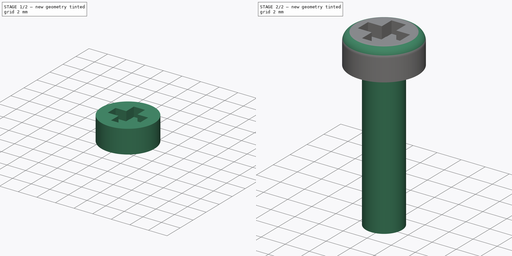
[diagram: build sequence overview — one tinted view per stage of 2, left to right]
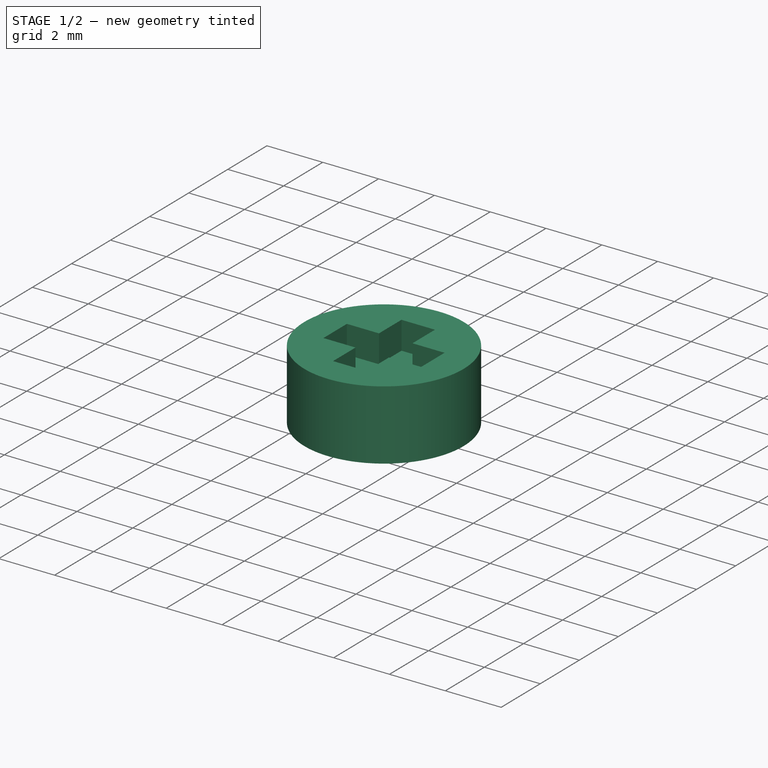
[diagram: stage 1 of 2 — iso view after this stage's code; geometry added in this stage tinted green]
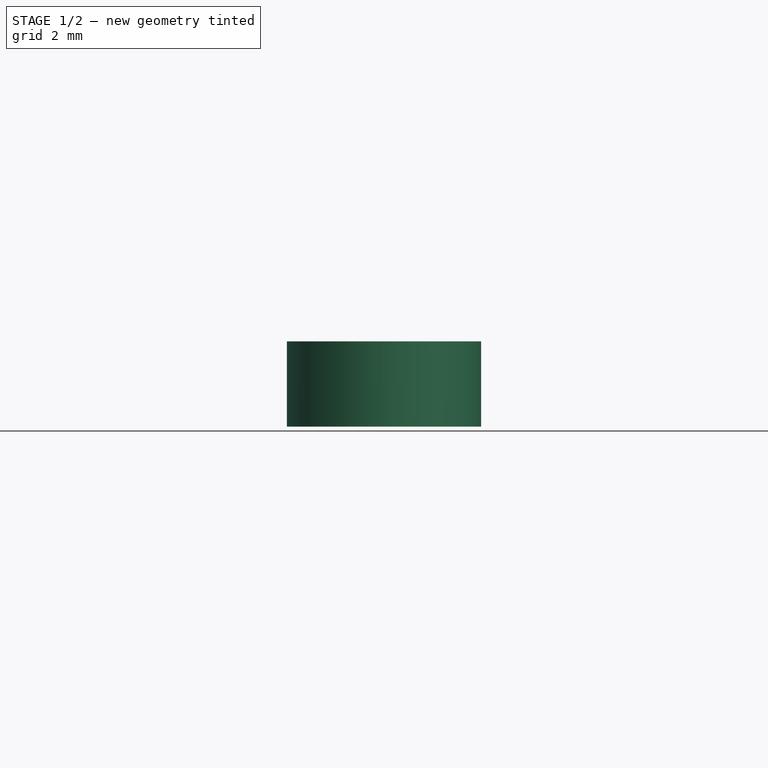
[diagram: stage 1 of 2 — front view after this stage's code; geometry added in this stage tinted green]
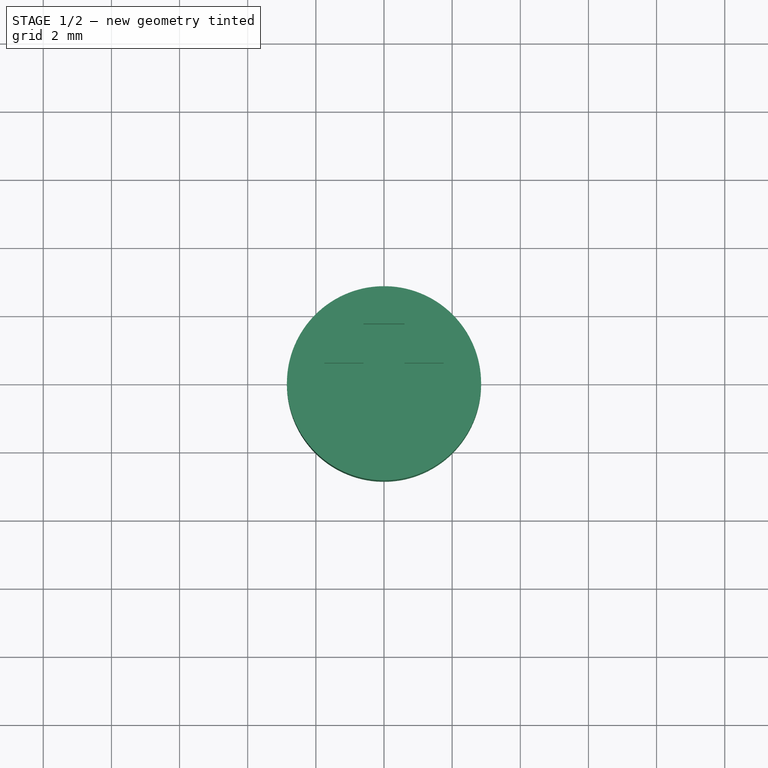
[diagram: stage 1 of 2 — top view after this stage's code; geometry added in this stage tinted green]
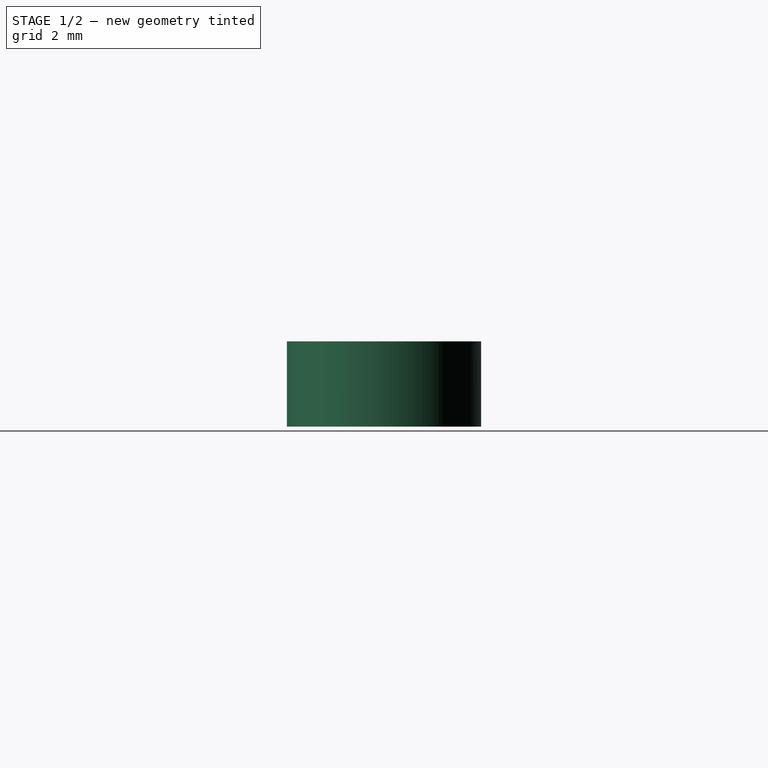
[diagram: stage 1 of 2 — right view after this stage's code; geometry added in this stage tinted green]
FCSTD DOCUMENT  (FreeCAD 0.21R33668 +26 (Git))
Label: Screw_12
License: All rights reserved
LicenseURL: https://en.wikipedia.org/wiki/All_rights_reserved
objects: Sketcher::SketchObject×3, PartDesign::Pad×2, PartDesign::Pocket×1, PartDesign::Fillet×1, PartDesign::Body×1
note: 12 computed .brp shape members not serialized (recipe doc carries the construction recipe); baked Part::Feature solids carry a one-line shape summary decoded from their .brp

FEATURE [Sketcher::SketchObject] Sketch
  FullyConstrained = true
  MapMode = 5
  Support = -> [XY_Plane]
  sketch-geometry (1):
    g0: Circle CenterX=0 CenterY=0 CenterZ=0 NormalX=0 NormalY=0 NormalZ=1 AngleXU=0 Radius=2.85
  constraints (2):
    c: Coincident(g0,g-1)
    c: Diameter(g0) = 5.7
FEATURE [PartDesign::Pad] Pad
  Direction = (0,0,1)
  Length = 2.5
  Length2 = 10
  Profile = -> Sketch
  ReferenceAxis = -> Sketch [N_Axis]
  Type = 0
FEATURE [Sketcher::SketchObject] Sketch001
  FullyConstrained = true
  MapMode = 5
  Placement = pos=(0,0,2.5) rot=(0,0,1;0rad)
  Support = -> [Pad]
  sketch-geometry (12):
    g0: LineSegment StartX=-0.6 StartY=1.75 StartZ=0 EndX=0.6 EndY=1.75 EndZ=0
    g1: LineSegment StartX=0.6 StartY=-1.75 StartZ=0 EndX=-0.6 EndY=-1.75 EndZ=0
    g2: LineSegment StartX=1.75 StartY=0.6 StartZ=0 EndX=1.75 EndY=-0.6 EndZ=0
    g3: LineSegment StartX=-1.75 StartY=-0.6 StartZ=0 EndX=-1.75 EndY=0.6 EndZ=0
    g4: LineSegment StartX=-0.6 StartY=1.75 StartZ=0 EndX=-0.6 EndY=0.6 EndZ=0
    g5: LineSegment StartX=-0.6 StartY=0.6 StartZ=0 EndX=-1.75 EndY=0.6 EndZ=0
    g6: LineSegment StartX=-1.75 StartY=-0.6 StartZ=0 EndX=-0.6 EndY=-0.6 EndZ=0
    g7: LineSegment StartX=-0.6 StartY=-0.6 StartZ=0 EndX=-0.6 EndY=-1.75 EndZ=0
    g8: LineSegment StartX=0.6 StartY=-1.75 StartZ=0 EndX=0.6 EndY=-0.6 EndZ=0
    g9: LineSegment StartX=0.6 StartY=-0.6 StartZ=0 EndX=1.75 EndY=-0.6 EndZ=0
    g10: LineSegment StartX=1.75 StartY=0.6 StartZ=0 EndX=0.6 EndY=0.6 EndZ=0
    g11: LineSegment StartX=0.6 StartY=1.75 StartZ=0 EndX=0.6 EndY=0.6 EndZ=0
  constraints (31):
    c: Horizontal(g0)
    c: Horizontal(g1)
    c: Vertical(g2)
    c: Vertical(g3)
    c: Coincident(g4,g0)
    c: Vertical(g4)
    c: Coincident(g5,g4)
    c: Coincident(g5,g3)
    c: Coincident(g6,g3)
    c: Horizontal(g6)
    c: Coincident(g7,g6)
    c: Coincident(g8,g1)
    c: Vertical(g11)
    c: Coincident(g7,g1)
    c: Coincident(g8,g9)
    c: Coincident(g9,g2)
    c: Coincident(g2,g10)
    c: Coincident(g10,g11)
    c: Coincident(g11,g0)
    c: Horizontal(g10)
    c: Horizontal(g9)
    c: Vertical(g8)
    c: Symmetric(g4,g6,g-1)
    c: Symmetric(g10,g4,g-2)
    c: Symmetric(g0,g1,g-1)
    c: Symmetric(g6,g8,g-2)
    c: Symmetric(g2,g3,g-2)
    c: Equal(g5,g4)
    c: Equal(g3,g0)
    c: DistanceY(g1,g0) = 3.5
    c: DistanceX(g0,g0) = 1.2
FEATURE [PartDesign::Pocket] Pocket
  BaseFeature = -> Pad
  Direction = (0,0,-1)
  Length = 1
  Length2 = 5
  Profile = -> Sketch001
  ReferenceAxis = -> Sketch001 [N_Axis]
  Type = 0
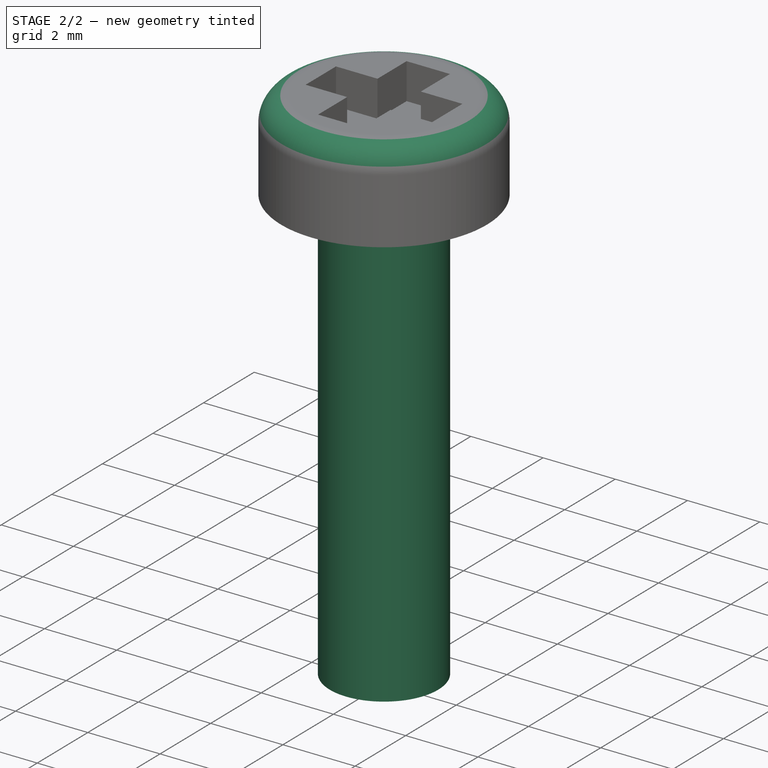
[diagram: stage 2 of 2 — iso view after this stage's code; geometry added in this stage tinted green]
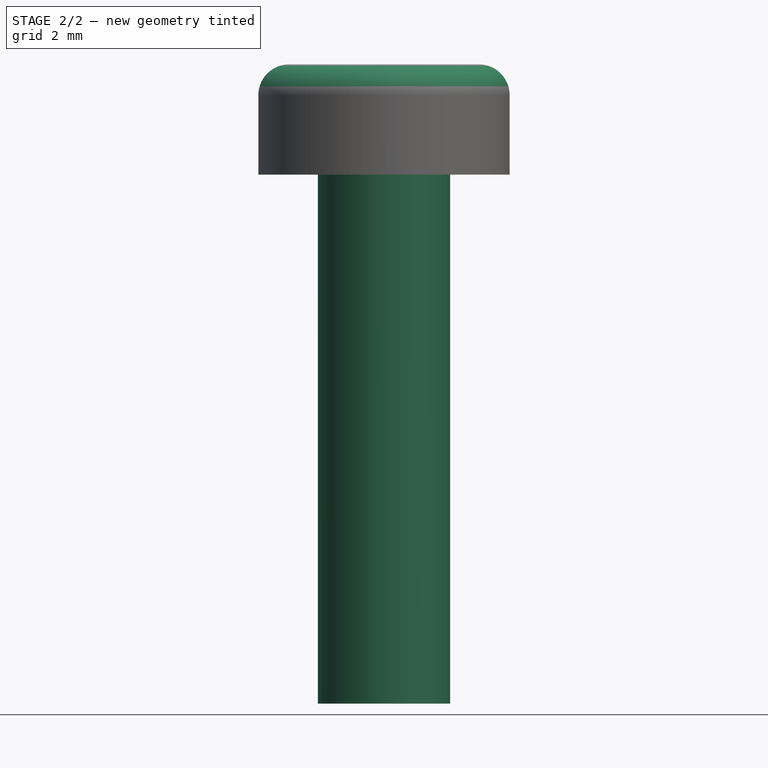
[diagram: stage 2 of 2 — front view after this stage's code; geometry added in this stage tinted green]
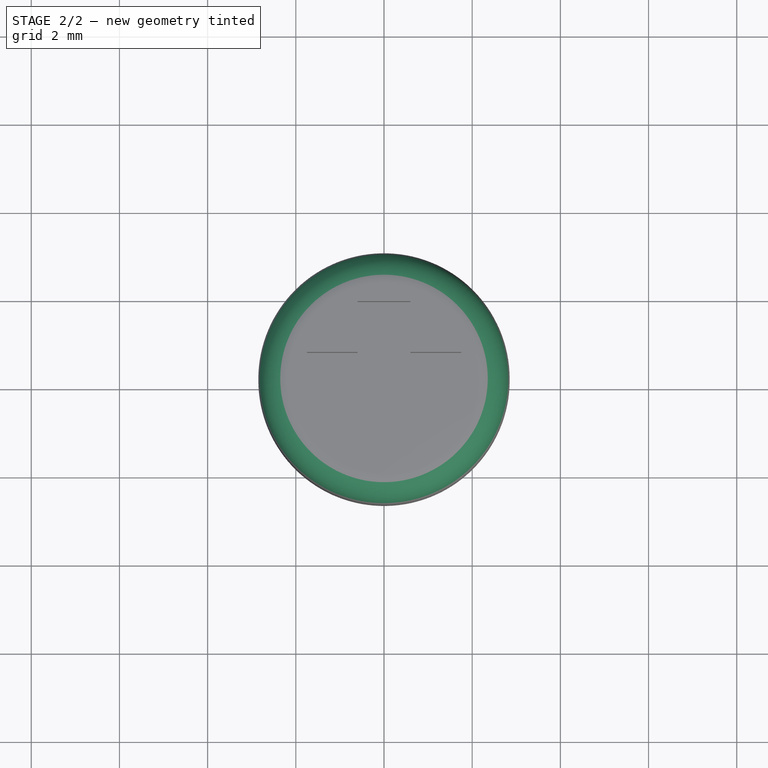
[diagram: stage 2 of 2 — top view after this stage's code; geometry added in this stage tinted green]
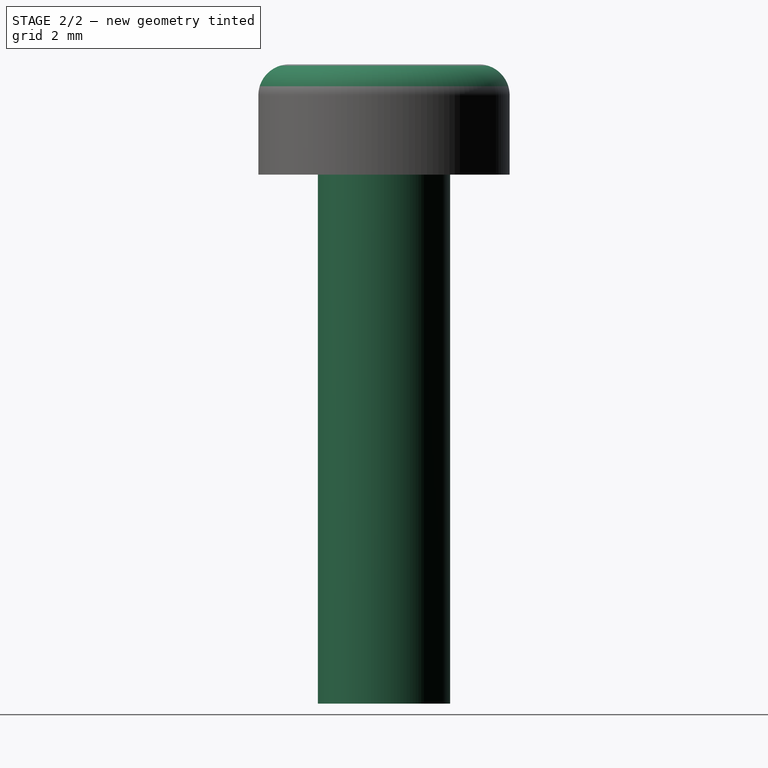
[diagram: stage 2 of 2 — right view after this stage's code; geometry added in this stage tinted green]
FEATURE [PartDesign::Fillet] Fillet
  Base = -> Pocket [Edge3]
  BaseFeature = -> Pocket
  Radius = 0.7
  SupportTransform = false
  UseAllEdges = false
FEATURE [Sketcher::SketchObject] Sketch002
  FullyConstrained = true
  MapMode = 5
  Placement = pos=(0,0,0) rot=(1,0,0;3.14159rad)
  Support = -> [Fillet]
  sketch-geometry (1):
    g0: Circle CenterX=0 CenterY=0 CenterZ=0 NormalX=0 NormalY=0 NormalZ=1 AngleXU=0 Radius=1.5
  constraints (2):
    c: Coincident(g0,g-1)
    c: Diameter(g0) = 3
FEATURE [PartDesign::Pad] Pad001
  BaseFeature = -> Fillet
  Direction = (0,0,-1)
  Length = 12
  Length2 = 10
  Profile = -> Sketch002
  ReferenceAxis = -> Sketch002 [N_Axis]
  Type = 0
FEATURE [PartDesign::Body] Body
  Group = -> [Sketch,Pad,Sketch001,Pocket,Fillet,Sketch002,Pad001]
  Origin = -> Origin
  Tip = -> Pad001
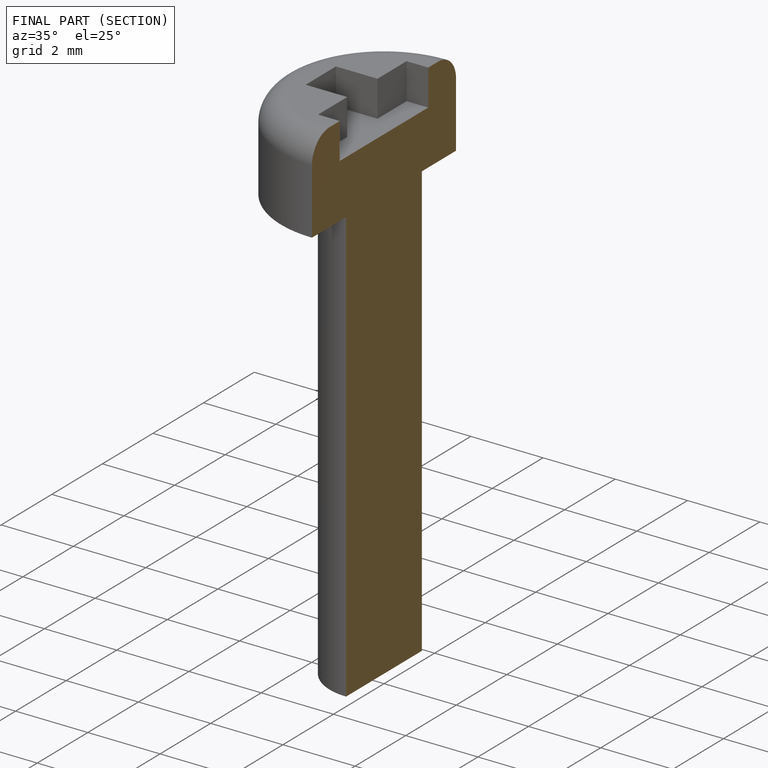
[diagram: finished part — half-section view (interior)]
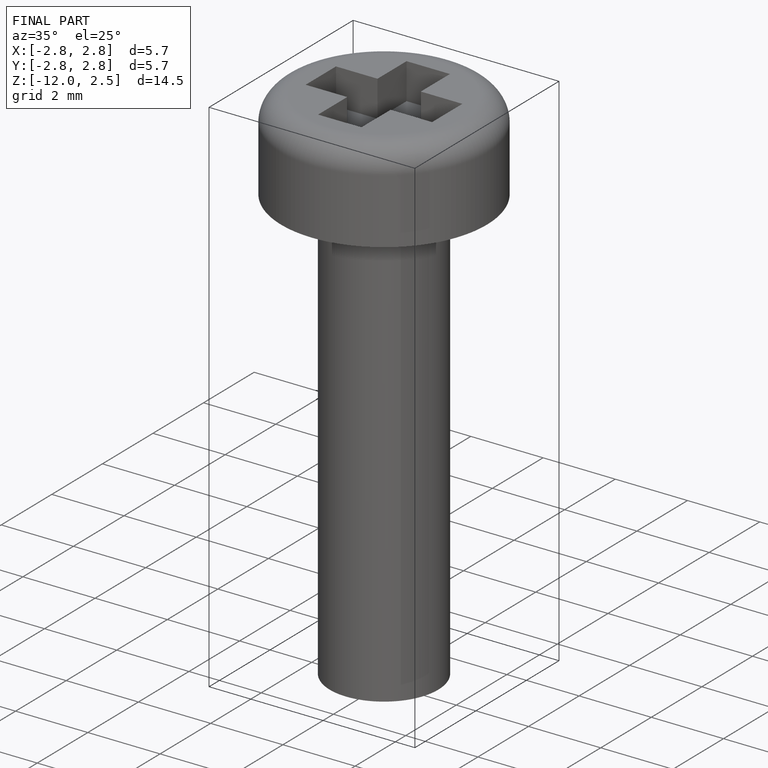
[diagram: finished part — iso view with bounding-box wireframe]
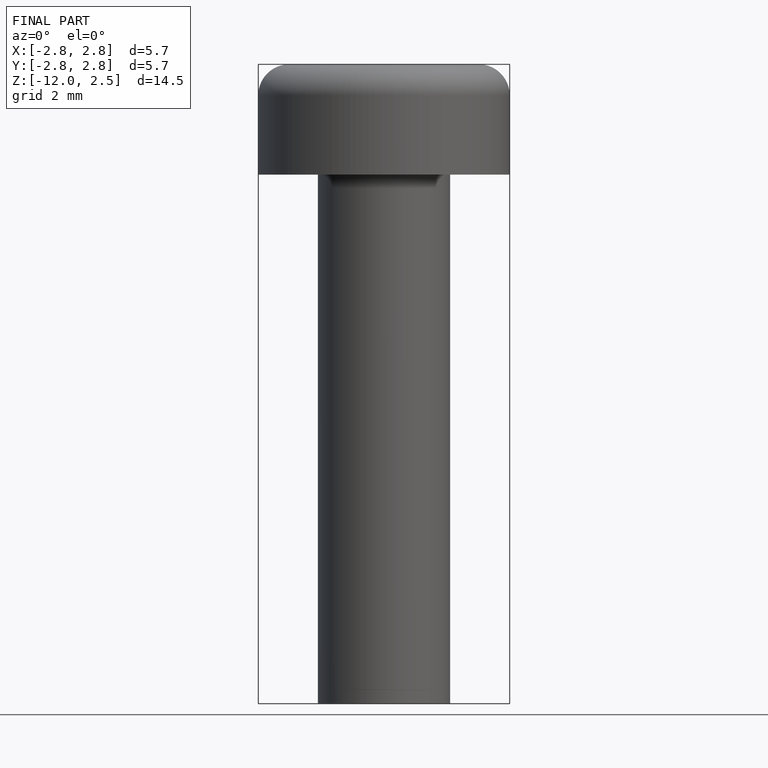
[diagram: finished part — front view with bounding-box wireframe]
